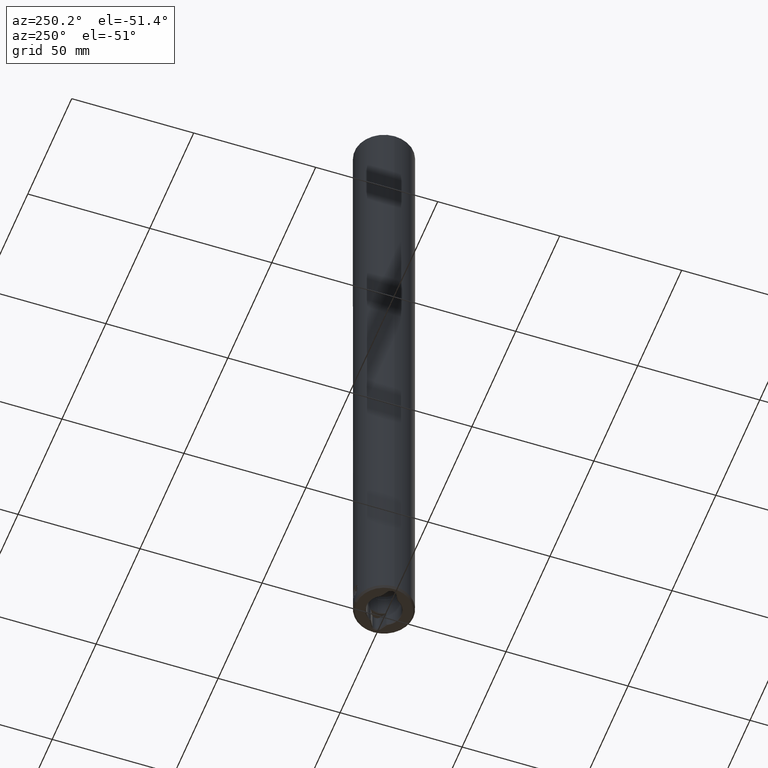
[diagram: clean part render]
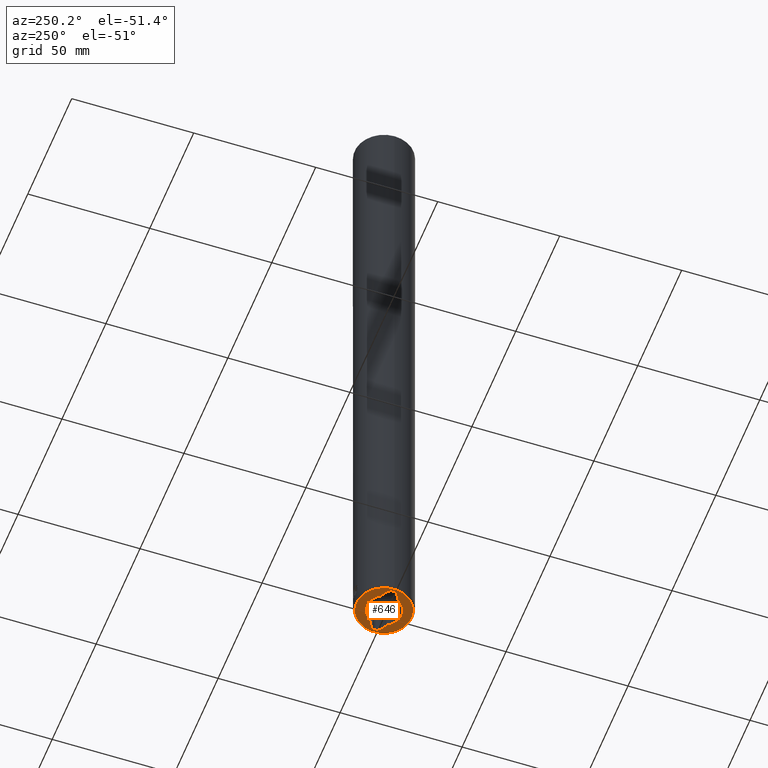
[diagram: same view with one face highlighted and labeled with its STEP entity id]
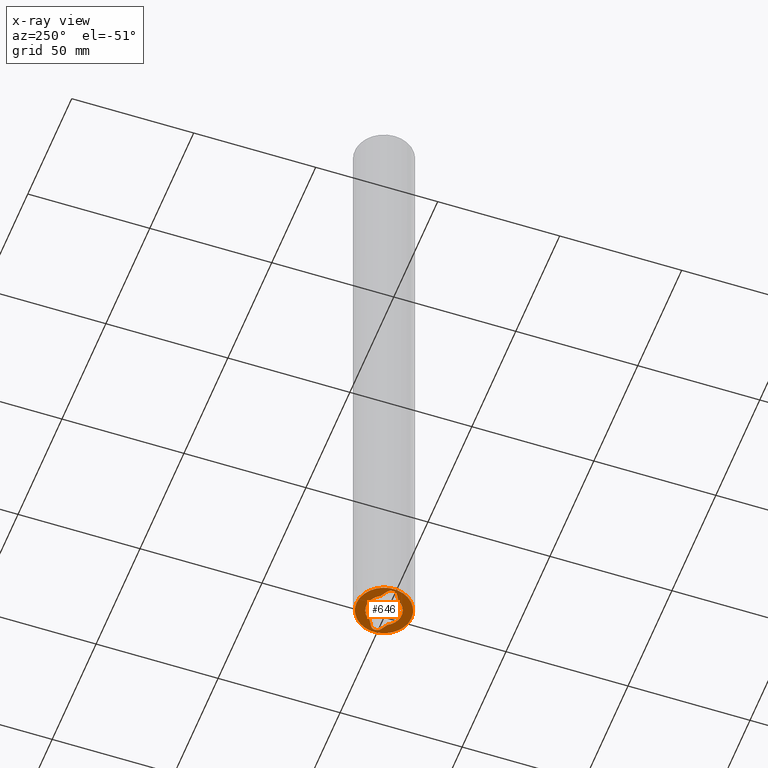
[diagram: x-ray of the same camera — body ghosted, the highlighted face saturated]
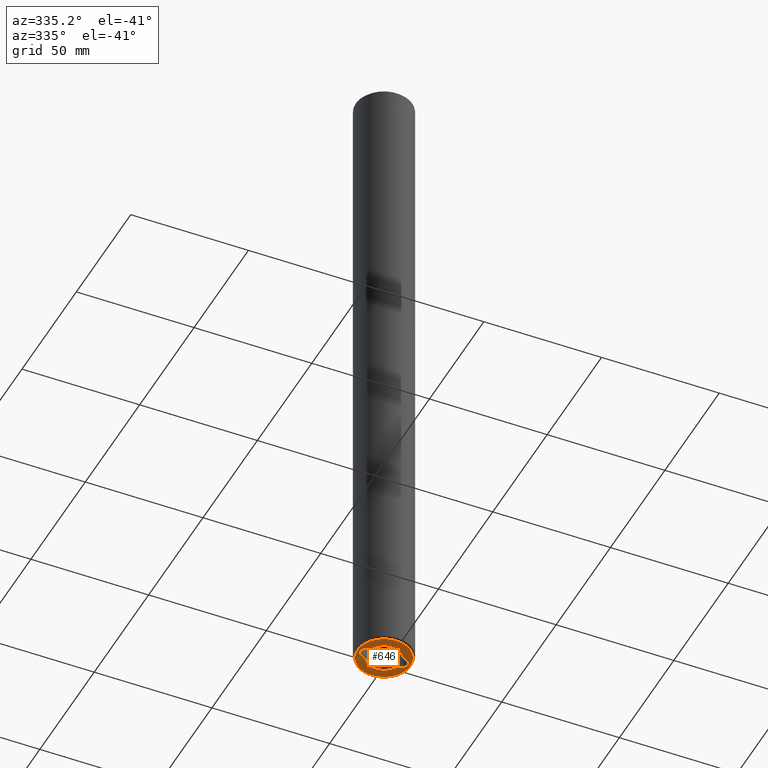
[diagram: same view with one face highlighted and labeled with its STEP entity id]
A machine part, auxiliary view. The second image highlights one B-rep face of the part: STEP entity #646.
The next image is the same camera in x-ray: the body ghosted, the highlighted face saturated — about 0% of this face is hidden behind the body in this view.
A second angle (auxiliary view) of the same face is appended — the face is thin or edge-on in the first view.
In plain terms, the highlighted planar face has unit normal (0, 0, -1).
Its self-contained STEP definition (entity closure, byte-faithful):
#386=VERTEX_POINT('NONE',#1086);
#426=VERTEX_POINT('NONE',#1133);
#462=VERTEX_POINT('NONE',#1173);
#466=VERTEX_POINT('NONE',#1178);
#492=EDGE_CURVE('NONE',#386,#462,#1207,.T.);
#508=EDGE_CURVE('NONE',#894,#640,#1225,.T.);
#524=EDGE_CURVE('NONE',#580,#550,#1242,.T.);
#550=VERTEX_POINT('NONE',#1269);
#566=EDGE_CURVE('NONE',#462,#568,#1287,.T.);
#568=VERTEX_POINT('',#1289);
#580=VERTEX_POINT('NONE',#1302);
#584=EDGE_CURVE('NONE',#662,#550,#1306,.T.);
#640=VERTEX_POINT('NONE',#1370);
#646=ADVANCED_FACE('NONE',(#1376,#1377),#1378,.T.);
#650=EDGE_CURVE('NONE',#938,#894,#1382,.T.);
#662=VERTEX_POINT('NONE',#1395);
#734=EDGE_CURVE('NONE',#426,#904,#1476,.T.);
#842=EDGE_CURVE('NONE',#904,#426,#1596,.T.);
#894=VERTEX_POINT('NONE',#1657);
#896=EDGE_CURVE('NONE',#662,#938,#1659,.T.);
#904=VERTEX_POINT('NONE',#1668);
#938=VERTEX_POINT('NONE',#1703);
#942=EDGE_CURVE('NONE',#640,#466,#1708,.T.);
#988=EDGE_CURVE('NONE',#386,#466,#1757,.T.);
#1046=EDGE_CURVE('NONE',#568,#580,#1820,.T.);
#1086=CARTESIAN_POINT('',(6.26983106300846,3.64029098305812,1.38777878078145E-014));
#1133=CARTESIAN_POINT('',(3.91648891865781E-014,-11.25,1.38777878078145E-014));
#1173=CARTESIAN_POINT('',(8.975,2.07846096908266,1.38777878078145E-014));
#1178=CARTESIAN_POINT('',(-6.26983106300847,3.64029098305811,1.38777878078145E-014));
#1207=LINE('',#2015,#2016);
#1225=CIRCLE('',#2040,2.4);
#1242=LINE('',#2075,#2076);
#1269=CARTESIAN_POINT('',(6.26983106300844,-3.64029098305815,1.38777878078145E-014));
#1287=CIRCLE('',#2147,2.4);
#1289=CARTESIAN_POINT('',(10.175,-2.93905524917371E-016,1.38777878078145E-014));
#1302=CARTESIAN_POINT('',(8.97500000000001,-2.07846096908265,1.38777878078145E-014));
#1306=CIRCLE('',#2181,7.25);
#1370=CARTESIAN_POINT('',(-8.97499999999999,2.07846096908266,1.38777878078145E-014));
#1376=FACE_OUTER_BOUND('',#2270,.T.);
#1377=FACE_BOUND('',#2271,.T.);
#1378=PLANE('',#2272);
#1382=CIRCLE('',#2279,2.4);
#1395=CARTESIAN_POINT('',(-6.26983106300844,-3.64029098305815,1.38777878078145E-014));
#1476=CIRCLE('',#2418,11.25);
#1596=CIRCLE('',#2646,11.25);
#1657=CARTESIAN_POINT('',(-10.175,0.0,1.38777878078145E-014));
#1659=LINE('',#2729,#2730);
#1668=CARTESIAN_POINT('',(-4.05884940728966E-014,11.25,1.38777878078145E-014));
#1703=CARTESIAN_POINT('',(-8.975,-2.07846096908265,1.38777878078145E-014));
#1708=LINE('',#2834,#2835);
#1757=CIRCLE('',#2934,7.25);
#1820=CIRCLE('',#3033,2.4);
#2015=CARTESIAN_POINT('',(3.91474596215556,5.0,1.38777878078145E-014));
#2016=VECTOR('',#3230,1000.0);
#2040=AXIS2_PLACEMENT_3D('',#3252,#3253,#3254);
#2075=CARTESIAN_POINT('',(8.97500000000001,-2.07846096908265,1.38777878078145E-014));
#2076=VECTOR('',#3270,1000.0);
#2147=AXIS2_PLACEMENT_3D('',#3312,#3313,#3314);
#2181=AXIS2_PLACEMENT_3D('',#3328,#3329,#3330);
#2270=EDGE_LOOP('',(#3410,#3411));
#2271=EDGE_LOOP('',(#3412,#3413,#3414,#3415,#3416,#3417,#3418,#3419,#3420,#3421));
#2272=AXIS2_PLACEMENT_3D('',#3422,#3423,#3424);
#2279=AXIS2_PLACEMENT_3D('',#3426,#3427,#3428);
#2418=AXIS2_PLACEMENT_3D('',#3544,#3545,#3546);
#2646=AXIS2_PLACEMENT_3D('',#3691,#3692,#3693);
#2729=CARTESIAN_POINT('',(-3.91474596215563,-5.0,1.38777878078145E-014));
#2730=VECTOR('',#3770,1000.0);
#2834=CARTESIAN_POINT('',(-8.97499999999999,2.07846096908266,1.38777878078145E-014));
#2835=VECTOR('',#3811,1000.0);
#2934=AXIS2_PLACEMENT_3D('',#3861,#3862,#3863);
#3033=AXIS2_PLACEMENT_3D('',#3932,#3933,#3934);
#3230=DIRECTION('',(0.866025403784442,-0.499999999999995,-0.0));
#3252=CARTESIAN_POINT('',(-7.775,0.0,1.38777878078145E-014));
#3253=DIRECTION('',(0.0,0.0,-1.0));
#3254=DIRECTION('',(-1.0,0.0,0.0));
#3270=DIRECTION('',(-0.866025403784438,-0.500000000000001,0.0));
#3312=CARTESIAN_POINT('',(7.77500000000001,0.0,1.38777878078145E-014));
#3313=DIRECTION('',(0.0,0.0,-1.0));
#3314=DIRECTION('',(-1.0,0.0,0.0));
#3328=CARTESIAN_POINT('',(0.0,0.0,1.38777878078145E-014));
#3329=DIRECTION('',(0.0,0.0,1.0));
#3330=DIRECTION('',(1.0,0.0,0.0));
#3410=ORIENTED_EDGE('',*,*,#842,.T.);
#3411=ORIENTED_EDGE('',*,*,#734,.T.);
#3412=ORIENTED_EDGE('',*,*,#942,.F.);
#3413=ORIENTED_EDGE('',*,*,#508,.F.);
#3414=ORIENTED_EDGE('',*,*,#650,.F.);
#3415=ORIENTED_EDGE('',*,*,#896,.F.);
#3416=ORIENTED_EDGE('',*,*,#584,.T.);
#3417=ORIENTED_EDGE('',*,*,#524,.F.);
#3418=ORIENTED_EDGE('',*,*,#1046,.F.);
#3419=ORIENTED_EDGE('',*,*,#566,.F.);
#3420=ORIENTED_EDGE('',*,*,#492,.F.);
#3421=ORIENTED_EDGE('',*,*,#988,.T.);
#3422=CARTESIAN_POINT('',(0.0,0.0,1.38777878078145E-014));
#3423=DIRECTION('',(0.0,0.0,-1.0));
#3424=DIRECTION('',(0.0,1.0,0.0));
#3426=CARTESIAN_POINT('',(-7.775,0.0,1.38777878078145E-014));
#3427=DIRECTION('',(0.0,0.0,-1.0));
#3428=DIRECTION('',(-1.0,0.0,0.0));
#3544=CARTESIAN_POINT('',(0.0,0.0,1.38777878078145E-014));
#3545=DIRECTION('',(0.0,0.0,-1.0));
#3546=DIRECTION('',(3.49148336110938E-015,-1.0,0.0));
#3691=CARTESIAN_POINT('',(0.0,0.0,1.38777878078145E-014));
#3692=DIRECTION('',(0.0,0.0,-1.0));
#3693=DIRECTION('',(3.49148336110938E-015,-1.0,0.0));
#3770=DIRECTION('',(-0.866025403784438,0.500000000000001,0.0));
#3811=DIRECTION('',(0.866025403784442,0.499999999999995,0.0));
#3861=CARTESIAN_POINT('',(0.0,0.0,1.38777878078145E-014));
#3862=DIRECTION('',(0.0,0.0,1.0));
#3863=DIRECTION('',(1.0,0.0,0.0));
#3932=CARTESIAN_POINT('',(7.77500000000001,0.0,1.38777878078145E-014));
#3933=DIRECTION('',(0.0,0.0,-1.0));
#3934=DIRECTION('',(-1.0,0.0,0.0));